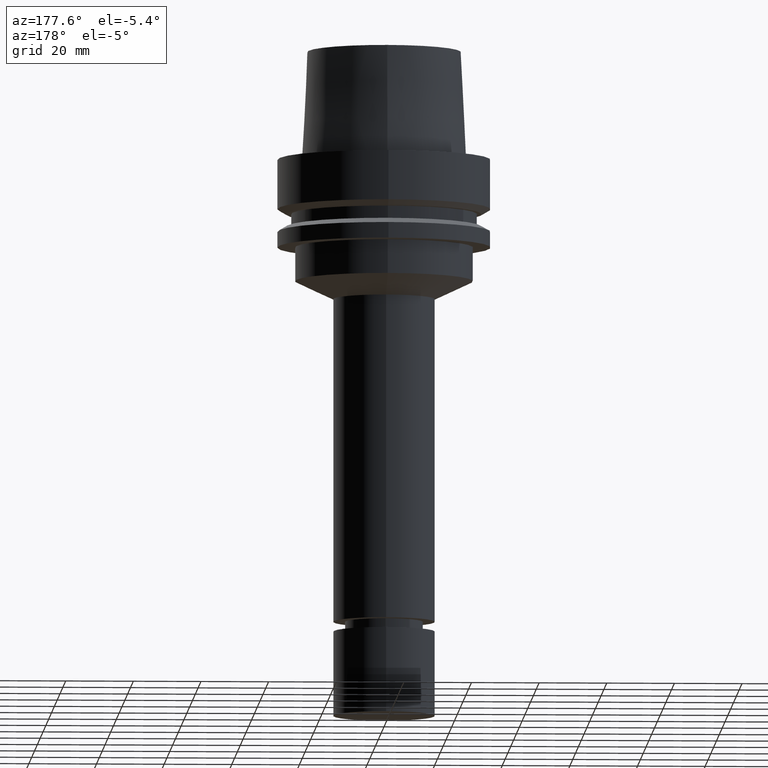
[diagram: clean part render]
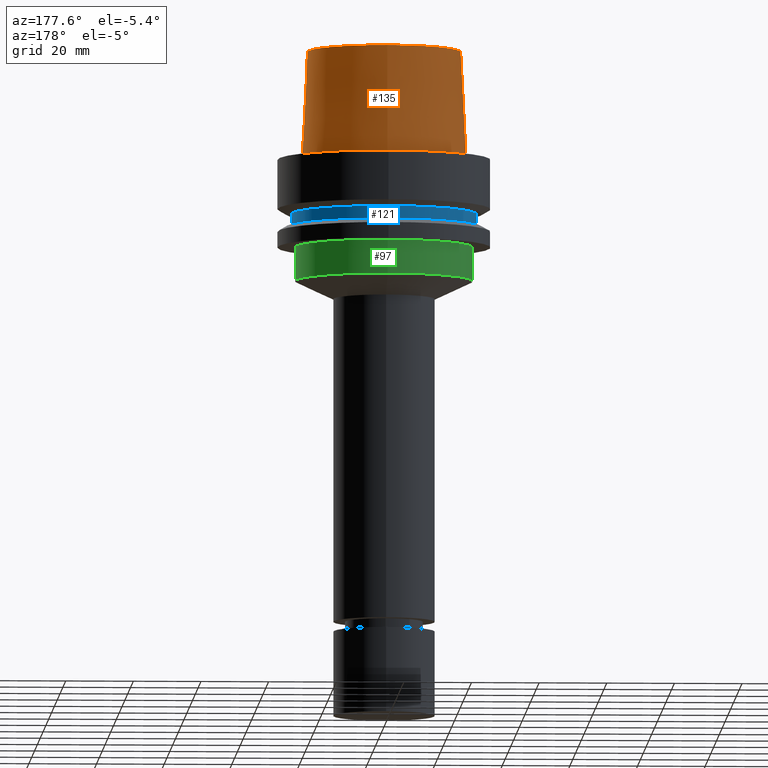
[diagram: same view with three faces highlighted in distinct colors, each labeled with its STEP entity id]
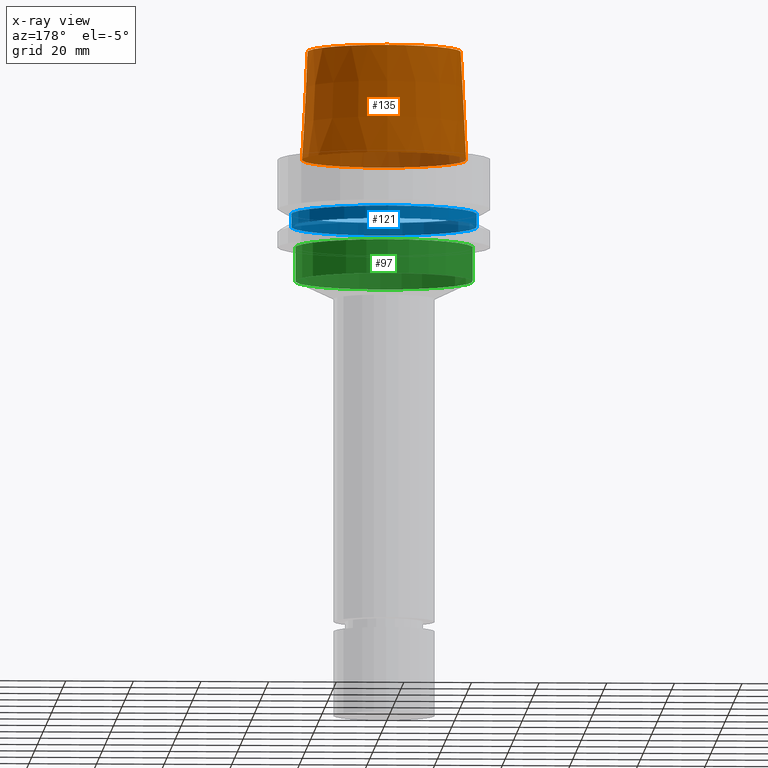
[diagram: x-ray of the same camera — body ghosted, the three highlighted faces saturated]
A machine part, auxiliary view with three faces highlighted in distinct colors.
The next image is the same camera in x-ray (body ghosted, the three faces saturated) — at least one of them is partly hidden behind the body in this view.
Their STEP definitions:

[orange] entity #135 — the highlighted conical surface has half-angle 2.862 deg.
#105=EDGE_CURVE('Unnamed[1]',#256,#256,#257,.T.);
#135=ADVANCED_FACE('Unnamed[1]',(#302,#303),#304,.T.);
#178=EDGE_CURVE('Unnamed[1]',#369,#369,#370,.T.);
#256=VERTEX_POINT('',#456);
#257=CIRCLE('',#457,22.715);
#302=FACE_BOUND('',#514,.T.);
#303=FACE_BOUND('',#515,.T.);
#304=CONICAL_SURFACE('',#516,23.515,0.0499583957219433);
#369=VERTEX_POINT('',#599);
#370=CIRCLE('',#600,24.315);
#456=CARTESIAN_POINT('',(-1.95943487863576E-015,22.715,32.0));
#457=AXIS2_PLACEMENT_3D('',#676,#677,#678);
#514=EDGE_LOOP('',(#727));
#515=EDGE_LOOP('',(#728));
#516=AXIS2_PLACEMENT_3D('',#729,#730,#731);
#599=CARTESIAN_POINT('',(-2.99705514225764E-031,24.315,2.97772869212679E-015));
#600=AXIS2_PLACEMENT_3D('',#802,#803,#804);
#676=CARTESIAN_POINT('',(-1.95943487863576E-015,-3.91886975727153E-015,32.0));
#677=DIRECTION('',(-6.12323399573676E-017,-1.22464679914735E-016,1.0));
#678=DIRECTION('',(-1.23259516440783E-032,1.0,1.22464679914735E-016));
#727=ORIENTED_EDGE('',*,*,#105,.F.);
#728=ORIENTED_EDGE('',*,*,#178,.T.);
#729=CARTESIAN_POINT('',(-9.79717439317882E-016,-1.95943487863576E-015,16.0));
#730=DIRECTION('',(6.12323399573677E-017,1.22464679914735E-016,-1.0));
#731=DIRECTION('',(-1.23259516440783E-032,1.0,1.22464679914735E-016));
#802=CARTESIAN_POINT('',(0.0,0.0,0.0));
#803=DIRECTION('',(-6.12323399573677E-017,-1.22464679914735E-016,1.0));
#804=DIRECTION('',(-1.23259516440783E-032,1.0,1.22464679914735E-016));

[blue] entity #121 — the highlighted cylindrical surface (bore or boss wall) has radius 27.5 mm, axis along (-0, -0, 1).
#121=ADVANCED_FACE('Unnamed[1]',(#280,#281),#282,.T.);
#159=EDGE_CURVE('Unnamed[1]',#341,#341,#342,.T.);
#176=EDGE_CURVE('Unnamed[1]',#366,#366,#367,.T.);
#280=FACE_BOUND('',#486,.T.);
#281=FACE_BOUND('',#487,.T.);
#282=CYLINDRICAL_SURFACE('',#488,27.4999999999994);
#341=VERTEX_POINT('',#563);
#342=CIRCLE('',#564,27.5);
#366=VERTEX_POINT('',#595);
#367=CIRCLE('',#596,27.4999999999989);
#486=EDGE_LOOP('',(#703));
#487=EDGE_LOOP('',(#704));
#488=AXIS2_PLACEMENT_3D('',#705,#706,#707);
#563=CARTESIAN_POINT('',(9.87371481812537E-016,27.5,-16.1249999999997));
#564=AXIS2_PLACEMENT_3D('',#771,#772,#773);
#595=CARTESIAN_POINT('',(1.21699275665276E-015,27.4999999999989,-19.8750000000013));
#596=AXIS2_PLACEMENT_3D('',#799,#800,#801);
#703=ORIENTED_EDGE('',*,*,#159,.F.);
#704=ORIENTED_EDGE('',*,*,#176,.T.);
#705=CARTESIAN_POINT('',(1.10218211923265E-015,2.2043642384653E-015,-18.0000000000005));
#706=DIRECTION('',(-6.12323399573677E-017,-1.22464679914735E-016,1.0));
#707=DIRECTION('',(-1.23259516440783E-032,1.0,1.22464679914735E-016));
#771=CARTESIAN_POINT('',(9.87371481812538E-016,1.97474296362508E-015,-16.1249999999997));
#772=DIRECTION('',(-6.12323399573677E-017,-1.22464679914735E-016,1.0));
#773=DIRECTION('',(-1.23259516440783E-032,1.0,1.22464679914735E-016));
#799=CARTESIAN_POINT('',(1.21699275665276E-015,2.43398551330552E-015,-19.8750000000013));
#800=DIRECTION('',(-6.12323399573677E-017,-1.22464679914735E-016,1.0));
#801=DIRECTION('',(-1.23259516440783E-032,1.0,1.22464679914735E-016));

[green] entity #97 — the highlighted cylindrical surface (bore or boss wall) has radius 26.3 mm, axis along (-0, -0, 1).
#97=ADVANCED_FACE('Unnamed[1]',(#242,#243),#244,.T.);
#110=EDGE_CURVE('Unnamed[1]',#264,#264,#265,.T.);
#145=EDGE_CURVE('Unnamed[1]',#319,#319,#320,.T.);
#242=FACE_BOUND('',#439,.T.);
#243=FACE_BOUND('',#440,.T.);
#244=CYLINDRICAL_SURFACE('',#441,26.3);
#264=VERTEX_POINT('',#466);
#265=CIRCLE('',#467,26.3);
#319=VERTEX_POINT('',#535);
#320=CIRCLE('',#536,26.3);
#439=EDGE_LOOP('',(#659));
#440=EDGE_LOOP('',(#660));
#441=AXIS2_PLACEMENT_3D('',#661,#662,#663);
#466=CARTESIAN_POINT('',(2.20436423866976E-015,26.3,-36.0000000033401));
#467=AXIS2_PLACEMENT_3D('',#685,#686,#687);
#535=CARTESIAN_POINT('',(1.59204083889154E-015,26.3,-25.9999999999997));
#536=AXIS2_PLACEMENT_3D('',#747,#748,#749);
#659=ORIENTED_EDGE('',*,*,#145,.F.);
#660=ORIENTED_EDGE('',*,*,#110,.T.);
#661=CARTESIAN_POINT('',(1.89820253878065E-015,3.7964050775613E-015,-31.0000000016699));
#662=DIRECTION('',(-6.12323399573677E-017,-1.22464679914735E-016,1.0));
#663=DIRECTION('',(-1.23259516440783E-032,1.0,1.22464679914735E-016));
#685=CARTESIAN_POINT('',(2.20436423866976E-015,4.40872847733952E-015,-36.0000000033401));
#686=DIRECTION('',(-6.12323399573677E-017,-1.22464679914735E-016,1.0));
#687=DIRECTION('',(-1.23259516440783E-032,1.0,1.22464679914735E-016));
#747=CARTESIAN_POINT('',(1.59204083889154E-015,3.18408167778308E-015,-25.9999999999997));
#748=DIRECTION('',(-6.12323399573677E-017,-1.22464679914735E-016,1.0));
#749=DIRECTION('',(-1.23259516440783E-032,1.0,1.22464679914735E-016));